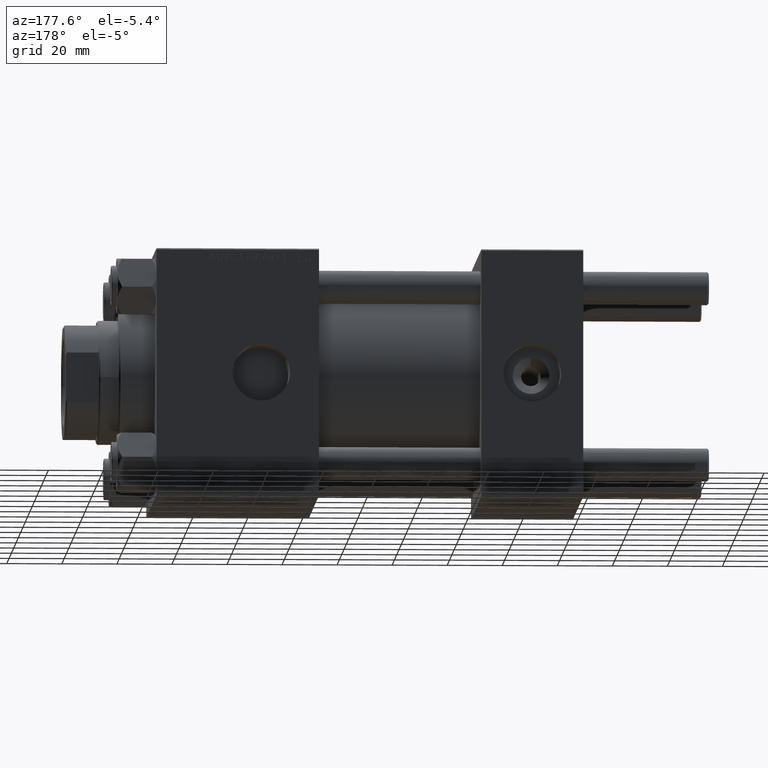
[diagram: clean part render]
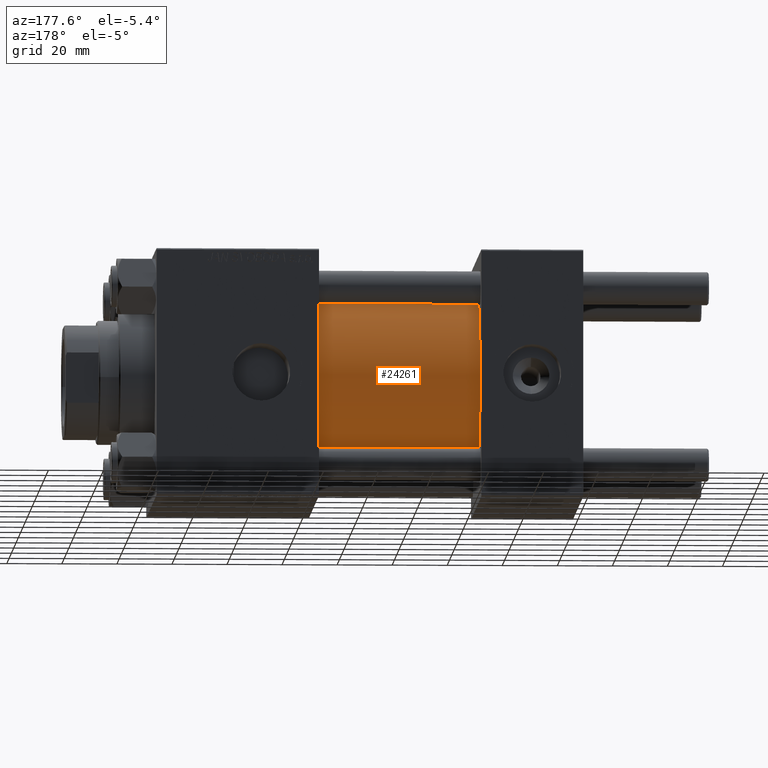
[diagram: same view with one face highlighted and labeled with its STEP entity id]
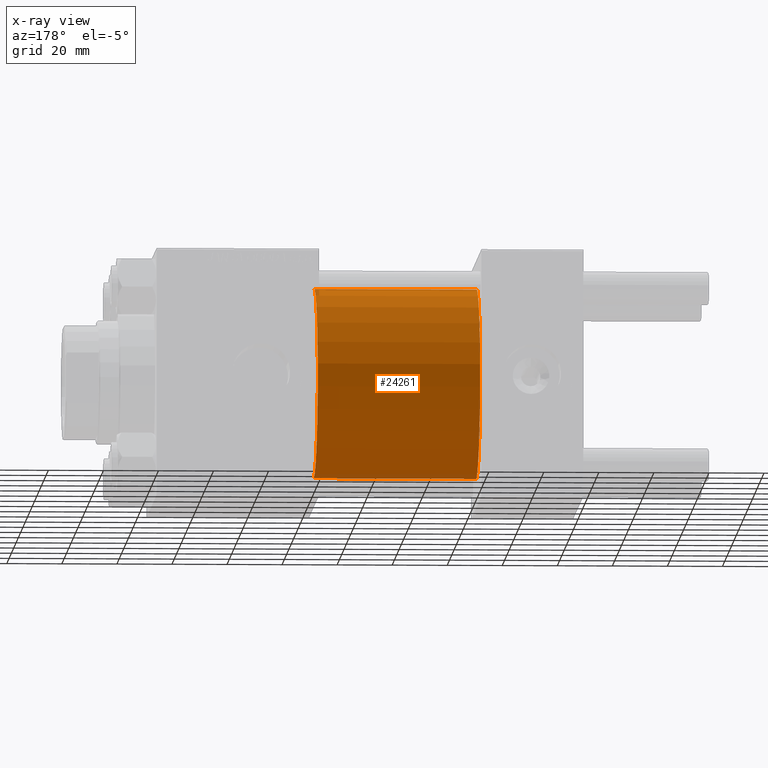
[diagram: x-ray of the same camera — body ghosted, the highlighted face saturated]
A machine part, auxiliary view. The second image highlights one B-rep face of the part: STEP entity #24261.
The next image is the same camera in x-ray: the body ghosted, the highlighted face saturated — about 3% of this face is hidden behind the body in this view.
In plain terms, the highlighted cylindrical surface (partial cylindrical patch) has radius 34.5 mm, axis along (-1, -0, -0).
Its self-contained STEP definition (entity closure, byte-faithful):
#501 = CARTESIAN_POINT ( 'NONE',  ( 37.00000000000000000, 4.225031457058367344E-15, -34.49999999999999289 ) ) ;
#2575 = EDGE_CURVE ( 'NONE', #18964, #40974, #37859, .T. ) ;
#3097 = CARTESIAN_POINT ( 'NONE',  ( 96.00000000000000000, 0.000000000000000000, 0.000000000000000000 ) ) ;
#3844 = DIRECTION ( 'NONE',  ( -1.000000000000000000, -0.000000000000000000, -0.000000000000000000 ) ) ;
#7973 = AXIS2_PLACEMENT_3D ( 'NONE', #39793, #24402, #17588 ) ;
#8982 = ORIENTED_EDGE ( 'NONE', *, *, #17105, .T. ) ;
#11147 = CARTESIAN_POINT ( 'NONE',  ( 37.00000000000000000, 0.000000000000000000, 0.000000000000000000 ) ) ;
#12134 = ORIENTED_EDGE ( 'NONE', *, *, #46828, .T. ) ;
#12287 = CARTESIAN_POINT ( 'NONE',  ( 96.00000000000000000, 0.000000000000000000, 34.49999999999999289 ) ) ;
#12492 = CIRCLE ( 'NONE', #14081, 34.49999999999999289 ) ;
#12549 = EDGE_LOOP ( 'NONE', ( #35814, #8982, #12134, #41875 ) ) ;
#13997 = DIRECTION ( 'NONE',  ( -1.000000000000000000, -0.000000000000000000, -0.000000000000000000 ) ) ;
#14081 = AXIS2_PLACEMENT_3D ( 'NONE', #11147, #49503, #33629 ) ;
#17105 = EDGE_CURVE ( 'NONE', #35518, #25393, #48563, .T. ) ;
#17588 = DIRECTION ( 'NONE',  ( 0.000000000000000000, 0.000000000000000000, -1.000000000000000000 ) ) ;
#18964 = VERTEX_POINT ( 'NONE', #12287 ) ;
#24261 = ADVANCED_FACE ( 'NONE', ( #27317 ), #42697, .T. ) ;
#24402 = DIRECTION ( 'NONE',  ( 1.000000000000000000, 0.000000000000000000, 0.000000000000000000 ) ) ;
#25393 = VERTEX_POINT ( 'NONE', #501 ) ;
#25865 = CARTESIAN_POINT ( 'NONE',  ( 96.00000000000000000, 4.225031457058367344E-15, -34.49999999999999289 ) ) ;
#26564 = DIRECTION ( 'NONE',  ( 0.000000000000000000, 0.000000000000000000, 1.000000000000000000 ) ) ;
#27241 = EDGE_CURVE ( 'NONE', #35518, #18964, #34566, .T. ) ;
#27255 = VECTOR ( 'NONE', #13997, 1000.000000000000000 ) ;
#27317 = FACE_OUTER_BOUND ( 'NONE', #12549, .T. ) ;
#29118 = CARTESIAN_POINT ( 'NONE',  ( 37.00000000000000000, 0.000000000000000000, 34.49999999999999289 ) ) ;
#33629 = DIRECTION ( 'NONE',  ( 0.000000000000000000, 0.000000000000000000, 1.000000000000000000 ) ) ;
#33794 = CARTESIAN_POINT ( 'NONE',  ( 96.00000000000000000, 4.225031457058367344E-15, -34.49999999999999289 ) ) ;
#34566 = CIRCLE ( 'NONE', #7973, 34.49999999999999289 ) ;
#35518 = VERTEX_POINT ( 'NONE', #33794 ) ;
#35790 = VECTOR ( 'NONE', #49459, 1000.000000000000000 ) ;
#35814 = ORIENTED_EDGE ( 'NONE', *, *, #27241, .F. ) ;
#37859 = LINE ( 'NONE', #41637, #35790 ) ;
#39793 = CARTESIAN_POINT ( 'NONE',  ( 96.00000000000000000, 0.000000000000000000, 0.000000000000000000 ) ) ;
#40974 = VERTEX_POINT ( 'NONE', #29118 ) ;
#41637 = CARTESIAN_POINT ( 'NONE',  ( 96.00000000000000000, 0.000000000000000000, 34.49999999999999289 ) ) ;
#41875 = ORIENTED_EDGE ( 'NONE', *, *, #2575, .F. ) ;
#42697 = CYLINDRICAL_SURFACE ( 'NONE', #43443, 34.49999999999999289 ) ;
#43443 = AXIS2_PLACEMENT_3D ( 'NONE', #3097, #3844, #26564 ) ;
#46828 = EDGE_CURVE ( 'NONE', #25393, #40974, #12492, .T. ) ;
#48563 = LINE ( 'NONE', #25865, #27255 ) ;
#49459 = DIRECTION ( 'NONE',  ( -1.000000000000000000, -0.000000000000000000, -0.000000000000000000 ) ) ;
#49503 = DIRECTION ( 'NONE',  ( 1.000000000000000000, -0.000000000000000000, 0.000000000000000000 ) ) ;